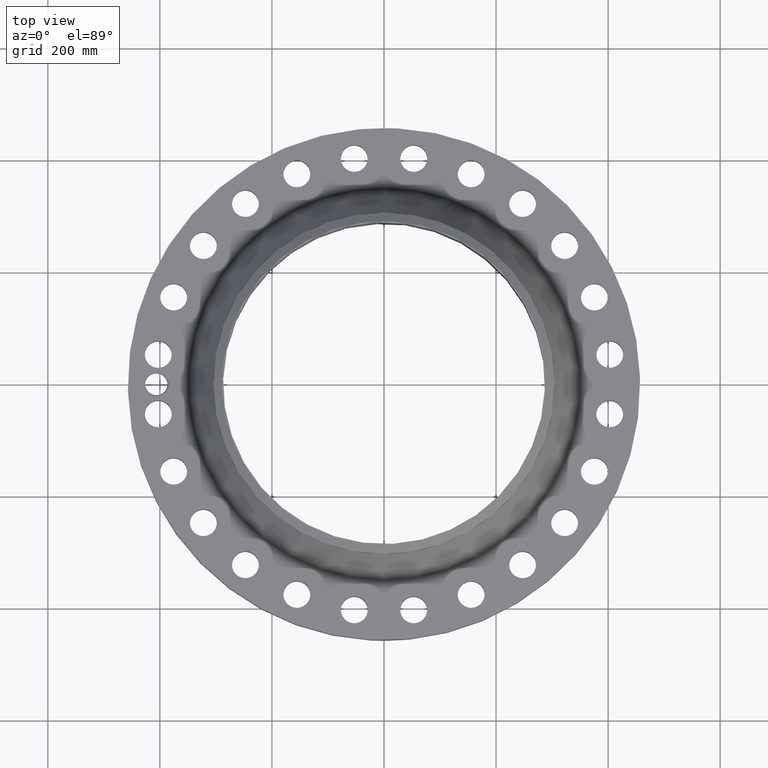
[diagram: clean part render]
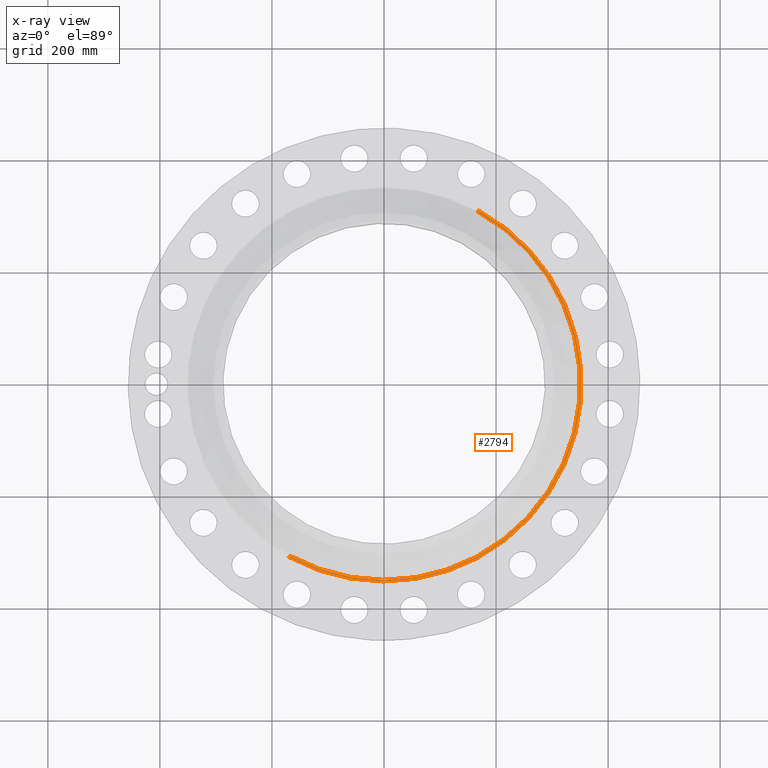
[diagram: x-ray — body ghosted, one internal face saturated and labeled with its STEP entity id]
A machine part, top view, then the same camera in x-ray: the body is ghosted and one INTERNAL B-rep face — a face not visible from any outside direction — is saturated and labeled: STEP entity #2794.
In plain terms, the highlighted toroidal blend (fillet) surface has major radius 352.545 mm and minor (blend) radius 3.048 mm.
Its self-contained STEP definition (entity closure, byte-faithful):
#868=AXIS2_PLACEMENT_3D('Circle Axis2P3D',#866,#867,$) ;
#2767=AXIS2_PLACEMENT_3D('Torus Axis2P3D',#2764,#2765,#2766) ;
#2771=AXIS2_PLACEMENT_3D('Circle Axis2P3D',#2769,#2770,$) ;
#2778=AXIS2_PLACEMENT_3D('Circle Axis2P3D',#2776,#2777,$) ;
#2785=AXIS2_PLACEMENT_3D('Circle Axis2P3D',#2783,#2784,$) ;
#861=CARTESIAN_POINT('Vertex',(-6.65429908599,-12.1806127735,3.25000000001)) ;
#863=CARTESIAN_POINT('Vertex',(6.65429908599,12.1806127735,3.25000000001)) ;
#866=CARTESIAN_POINT('Axis2P3D Location',(0.,0.,3.25000000001)) ;
#2764=CARTESIAN_POINT('Axis2P3D Location',(0.,0.,3.37000000001)) ;
#2769=CARTESIAN_POINT('Axis2P3D Location',(6.65429908599,12.1806127735,3.37000000001)) ;
#2773=CARTESIAN_POINT('Vertex',(6.60431416565,12.0891159906,3.31058748914)) ;
#2776=CARTESIAN_POINT('Axis2P3D Location',(0.,0.,3.31058748914)) ;
#2780=CARTESIAN_POINT('Vertex',(-6.60431416565,-12.0891159906,3.31058748914)) ;
#2783=CARTESIAN_POINT('Axis2P3D Location',(-6.65429908599,-12.1806127735,3.37000000001)) ;
#867=DIRECTION('Axis2P3D Direction',(0.,0.,-0.0393700787402)) ;
#2765=DIRECTION('Axis2P3D Direction',(0.,0.,-0.0393700787402)) ;
#2766=DIRECTION('Axis2P3D XDirection',(-0.0188750212049,-0.0345504945626,0.)) ;
#2770=DIRECTION('Axis2P3D Direction',(-0.0345504945626,0.0188750212049,0.)) ;
#2777=DIRECTION('Axis2P3D Direction',(0.,0.,-0.0393700787402)) ;
#2784=DIRECTION('Axis2P3D Direction',(0.0345504945626,-0.0188750212049,0.)) ;
#2789=ORIENTED_EDGE('',*,*,#870,.F.) ;
#2790=ORIENTED_EDGE('',*,*,#2775,.T.) ;
#2791=ORIENTED_EDGE('',*,*,#2782,.T.) ;
#2792=ORIENTED_EDGE('',*,*,#2787,.F.) ;
#2794=ADVANCED_FACE('PartBody',(#2793),#2768,.F.) ;
#869=CIRCLE('generated circle',#868,13.8797342865) ;
#2772=CIRCLE('generated circle',#2771,0.12) ;
#2779=CIRCLE('generated circle',#2778,13.775474258) ;
#2786=CIRCLE('generated circle',#2785,0.12) ;
#2768=TOROIDAL_SURFACE('homeo Torus',#2767,13.8797342865,0.12) ;
#870=EDGE_CURVE('',#864,#862,#869,.T.) ;
#2775=EDGE_CURVE('',#864,#2774,#2772,.T.) ;
#2782=EDGE_CURVE('',#2774,#2781,#2779,.T.) ;
#2787=EDGE_CURVE('',#862,#2781,#2786,.T.) ;
#2788=EDGE_LOOP('',(#2789,#2790,#2791,#2792)) ;
#2793=FACE_OUTER_BOUND('',#2788,.T.) ;
#862=VERTEX_POINT('',#861) ;
#864=VERTEX_POINT('',#863) ;
#2774=VERTEX_POINT('',#2773) ;
#2781=VERTEX_POINT('',#2780) ;